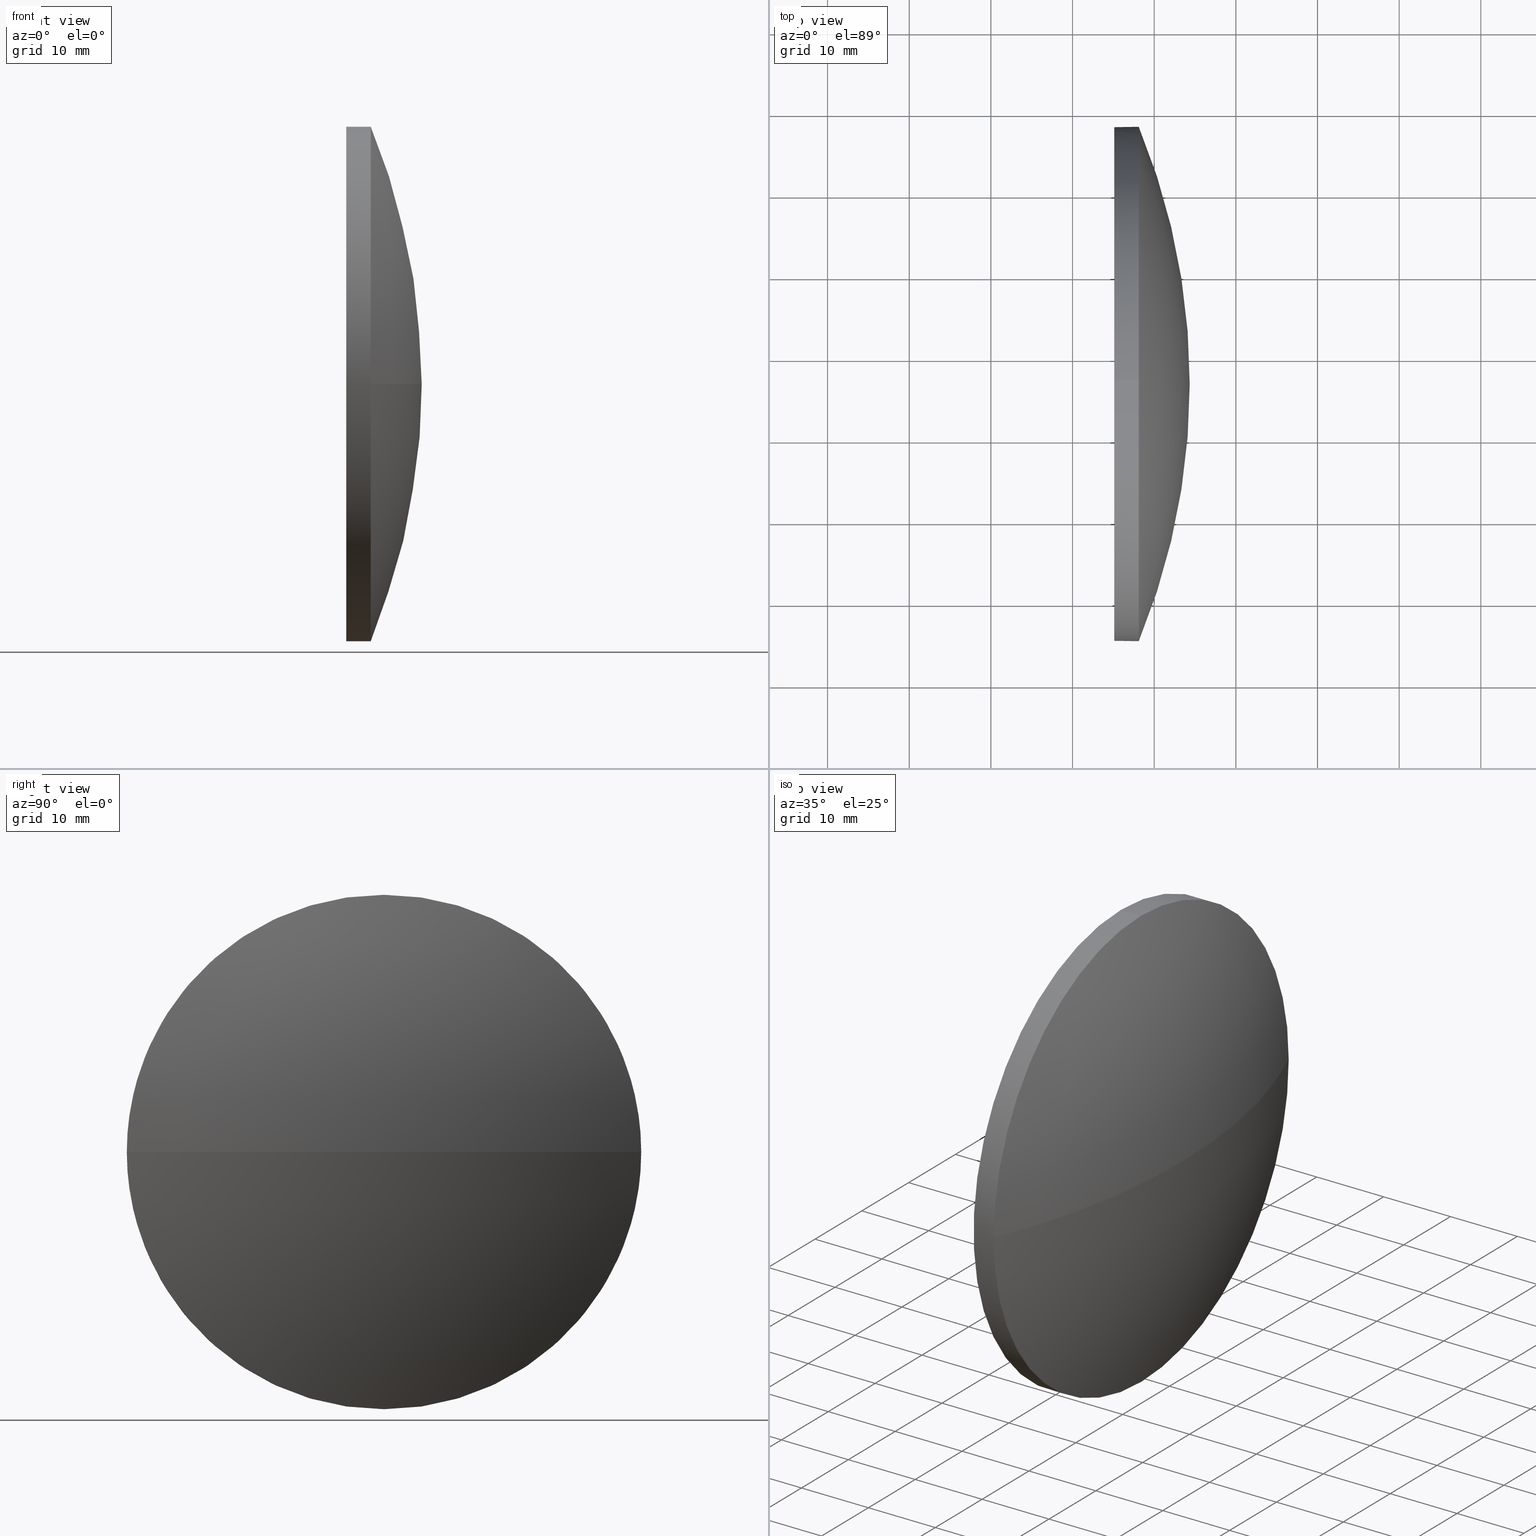
[diagram: canonical four-view strip — front | top / right | iso, engineering-drawing reading convention]
A machine part, canonical four-view strip (front | top / right | iso — engineering-drawing reading convention). The complete STEP part file that produces these views, byte-faithful:
ISO-10303-21;
HEADER;
FILE_DESCRIPTION (( 'STEP AP214' ),
    '1' );
FILE_NAME ('100074.STEP',
    '2019-05-06T03:59:21',
    ( '' ),
    ( '' ),
    'SwSTEP 2.0',
    'SolidWorks 2016',
    '' );
FILE_SCHEMA (( 'AUTOMOTIVE_DESIGN' ));
ENDSEC;

DATA;
#1 = ADVANCED_FACE ( 'NONE', ( #64 ), #46, .T. ) ;
#2 = CARTESIAN_POINT ( 'NONE',  ( 386.0720623555101800, 96.66232867724565400, -31.50000000000001400 ) ) ;
#3 = MECHANICAL_DESIGN_GEOMETRIC_PRESENTATION_REPRESENTATION (  '', ( #147 ), #183 ) ;
#4 = CIRCLE ( 'NONE', #106, 31.50000000000001400 ) ;
#5 = SURFACE_STYLE_FILL_AREA ( #116 ) ;
#6 = PRODUCT_DEFINITION_FORMATION_WITH_SPECIFIED_SOURCE ( '�κ�', '', #88, .NOT_KNOWN. ) ;
#7 = DIRECTION ( 'NONE',  ( -1.000000000000000000, -0.0000000000000000000, -0.0000000000000000000 ) ) ;
#8 = DIRECTION ( 'NONE',  ( -1.000000000000000000, -0.0000000000000000000, -0.0000000000000000000 ) ) ;
#9 = PRODUCT_RELATED_PRODUCT_CATEGORY ( 'part', '', ( #88 ) ) ;
#10 = DIRECTION ( 'NONE',  ( 0.0000000000000000000, 0.0000000000000000000, 1.000000000000000000 ) ) ;
#11 = ORIENTED_EDGE ( 'NONE', *, *, #49, .F. ) ;
#12 = ORIENTED_EDGE ( 'NONE', *, *, #132, .T. ) ;
#13 = SURFACE_STYLE_USAGE ( .BOTH. , #73 ) ;
#14 =( NAMED_UNIT ( * ) PLANE_ANGLE_UNIT ( ) SI_UNIT ( $, .RADIAN. ) );
#15 = AXIS2_PLACEMENT_3D ( 'NONE', #164, #69, #143 ) ;
#16 = MECHANICAL_DESIGN_GEOMETRIC_PRESENTATION_REPRESENTATION (  '', ( #56 ), #48 ) ;
#17 = CARTESIAN_POINT ( 'NONE',  ( 405.1110174173326200, 96.66232867724565400, 31.50000000000001400 ) ) ;
#18 = DIRECTION ( 'NONE',  ( 0.0000000000000000000, 0.0000000000000000000, 1.000000000000000000 ) ) ;
#19 = FACE_OUTER_BOUND ( 'NONE', #105, .T. ) ;
#20 = ADVANCED_BREP_SHAPE_REPRESENTATION ( '100074', ( #110, #67 ), #125 ) ;
#21 = DIRECTION ( 'NONE',  ( 0.0000000000000000000, 0.0000000000000000000, 1.000000000000000000 ) ) ;
#22 = CARTESIAN_POINT ( 'NONE',  ( 405.1110174173326200, 96.66232867724565400, 0.0000000000000000000 ) ) ;
#23 = DIRECTION ( 'NONE',  ( 0.0000000000000000000, 0.0000000000000000000, -1.000000000000000000 ) ) ;
#24 = DIRECTION ( 'NONE',  ( -1.000000000000000000, -0.0000000000000000000, -0.0000000000000000000 ) ) ;
#25 = AXIS2_PLACEMENT_3D ( 'NONE', #36, #24, #10 ) ;
#26 =( NAMED_UNIT ( * ) SI_UNIT ( $, .STERADIAN. ) SOLID_ANGLE_UNIT ( ) );
#27 = APPLICATION_PROTOCOL_DEFINITION ( 'draft international standard', 'automotive_design', 1998, #120 ) ;
#28 =( NAMED_UNIT ( * ) SI_UNIT ( $, .STERADIAN. ) SOLID_ANGLE_UNIT ( ) );
#29 = EDGE_CURVE ( 'NONE', #60, #70, #86, .T. ) ;
#30 = EDGE_LOOP ( 'NONE', ( #33, #126, #135, #94, #144 ) ) ;
#31 = AXIS2_PLACEMENT_3D ( 'NONE', #140, #98, #83 ) ;
#32 = ADVANCED_FACE ( 'NONE', ( #44 ), #130, .T. ) ;
#33 = ORIENTED_EDGE ( 'NONE', *, *, #45, .T. ) ;
#34 = VECTOR ( 'NONE', #165, 1000.000000000000000 ) ;
#35 = PRODUCT_DEFINITION_CONTEXT ( 'detailed design', #120, 'design' ) ;
#36 = CARTESIAN_POINT ( 'NONE',  ( 408.1110174173326200, 96.66232867724565400, 0.0000000000000000000 ) ) ;
#37 = DIRECTION ( 'NONE',  ( 1.000000000000000000, 0.0000000000000000000, 0.0000000000000000000 ) ) ;
#38 = CARTESIAN_POINT ( 'NONE',  ( 414.3510174173326800, 96.66232867724556900, 0.0000000000000000000 ) ) ;
#39 = APPLICATION_CONTEXT ( 'automotive_design' ) ;
#40 = ORIENTED_EDGE ( 'NONE', *, *, #112, .T. ) ;
#41 = PRODUCT_CONTEXT ( 'NONE', #39, 'mechanical' ) ;
#42 = UNCERTAINTY_MEASURE_WITH_UNIT (LENGTH_MEASURE( 1.000000000000000100E-005 ), #89, 'distance_accuracy_value', 'NONE');
#43 = DIRECTION ( 'NONE',  ( 0.0000000000000000000, 0.0000000000000000000, 1.000000000000000000 ) ) ;
#44 = FACE_OUTER_BOUND ( 'NONE', #157, .T. ) ;
#45 = EDGE_CURVE ( 'NONE', #87, #60, #95, .T. ) ;
#46 = CYLINDRICAL_SURFACE ( 'NONE', #85, 31.50000000000001400 ) ;
#47 = VERTEX_POINT ( 'NONE', #63 ) ;
#48 =( GEOMETRIC_REPRESENTATION_CONTEXT ( 3 ) GLOBAL_UNCERTAINTY_ASSIGNED_CONTEXT ( ( #181 ) ) GLOBAL_UNIT_ASSIGNED_CONTEXT ( ( #186, #72, #28 ) ) REPRESENTATION_CONTEXT ( 'NONE', 'WORKASPACE' ) );
#49 = EDGE_CURVE ( 'NONE', #109, #47, #61, .T. ) ;
#50 = UNCERTAINTY_MEASURE_WITH_UNIT (LENGTH_MEASURE( 1.000000000000000100E-005 ), #153, 'distance_accuracy_value', 'NONE');
#51 = VERTEX_POINT ( 'NONE', #17 ) ;
#52 = ORIENTED_EDGE ( 'NONE', *, *, #132, .F. ) ;
#53 = DIRECTION ( 'NONE',  ( 0.0000000000000000000, 1.224646799147353200E-016, -1.000000000000000000 ) ) ;
#54 = CARTESIAN_POINT ( 'NONE',  ( 331.7238058788712500, 96.66232867724556900, 0.0000000000000000000 ) ) ;
#55 = CARTESIAN_POINT ( 'NONE',  ( 408.1110174173326200, 96.66232867724565400, 0.0000000000000000000 ) ) ;
#56 = STYLED_ITEM ( 'NONE', ( #142 ), #20 ) ;
#57 = CARTESIAN_POINT ( 'NONE',  ( 405.1110174173326200, 96.66232867724565400, 0.0000000000000000000 ) ) ;
#58 =( NAMED_UNIT ( * ) PLANE_ANGLE_UNIT ( ) SI_UNIT ( $, .RADIAN. ) );
#59 = CIRCLE ( 'NONE', #100, 31.50000000000001400 ) ;
#60 = VERTEX_POINT ( 'NONE', #77 ) ;
#61 = CIRCLE ( 'NONE', #155, 82.62721153846143800 ) ;
#62 = ADVANCED_FACE ( 'NONE', ( #19 ), #170, .F. ) ;
#63 = CARTESIAN_POINT ( 'NONE',  ( 408.1110174173326200, 65.16232867724556900, -3.857637417314161900E-015 ) ) ;
#64 = FACE_OUTER_BOUND ( 'NONE', #30, .T. ) ;
#65 = CARTESIAN_POINT ( 'NONE',  ( 331.7238058788712500, 96.66232867724556900, 0.0000000000000000000 ) ) ;
#66 = CARTESIAN_POINT ( 'NONE',  ( 386.0720623555101800, 96.66232867724565400, 0.0000000000000000000 ) ) ;
#67 = AXIS2_PLACEMENT_3D ( 'NONE', #152, #84, #133 ) ;
#68 = SURFACE_SIDE_STYLE ('',( #5 ) ) ;
#69 = DIRECTION ( 'NONE',  ( -0.0000000000000000000, 0.0000000000000000000, 1.000000000000000000 ) ) ;
#70 = VERTEX_POINT ( 'NONE', #151 ) ;
#71 =( NAMED_UNIT ( * ) SI_UNIT ( $, .STERADIAN. ) SOLID_ANGLE_UNIT ( ) );
#72 =( NAMED_UNIT ( * ) PLANE_ANGLE_UNIT ( ) SI_UNIT ( $, .RADIAN. ) );
#73 = SURFACE_SIDE_STYLE ('',( #107 ) ) ;
#74 = EDGE_LOOP ( 'NONE', ( #169, #101, #12, #166, #80 ) ) ;
#75 = CLOSED_SHELL ( 'NONE', ( #1, #137, #32, #171, #62 ) ) ;
#76 = SPHERICAL_SURFACE ( 'NONE', #31, 82.62721153846143800 ) ;
#77 = CARTESIAN_POINT ( 'NONE',  ( 408.1110174173326200, 96.66232867724565400, -31.50000000000001400 ) ) ;
#78 = AXIS2_PLACEMENT_3D ( 'NONE', #57, #37, #23 ) ;
#79 = LINE ( 'NONE', #177, #34 ) ;
#80 = ORIENTED_EDGE ( 'NONE', *, *, #90, .F. ) ;
#81 = DIRECTION ( 'NONE',  ( 0.0000000000000000000, 0.0000000000000000000, 1.000000000000000000 ) ) ;
#82 = DIRECTION ( 'NONE',  ( 0.0000000000000000000, 0.0000000000000000000, 1.000000000000000000 ) ) ;
#83 = DIRECTION ( 'NONE',  ( 0.0000000000000000000, 1.000000000000000000, 0.0000000000000000000 ) ) ;
#84 = DIRECTION ( 'NONE',  ( 0.0000000000000000000, 0.0000000000000000000, 1.000000000000000000 ) ) ;
#85 = AXIS2_PLACEMENT_3D ( 'NONE', #93, #172, #18 ) ;
#86 = LINE ( 'NONE', #2, #184 ) ;
#87 = VERTEX_POINT ( 'NONE', #141 ) ;
#88 = PRODUCT ( '100074', '100074', '', ( #41 ) ) ;
#89 =( LENGTH_UNIT ( ) NAMED_UNIT ( * ) SI_UNIT ( .MILLI., .METRE. ) );
#90 = EDGE_CURVE ( 'NONE', #70, #51, #59, .T. ) ;
#91 = CIRCLE ( 'NONE', #25, 31.50000000000001400 ) ;
#92 = ORIENTED_EDGE ( 'NONE', *, *, #173, .F. ) ;
#93 = CARTESIAN_POINT ( 'NONE',  ( 386.0720623555101800, 96.66232867724565400, 0.0000000000000000000 ) ) ;
#94 = ORIENTED_EDGE ( 'NONE', *, *, #123, .F. ) ;
#95 = CIRCLE ( 'NONE', #138, 31.50000000000001400 ) ;
#96 = AXIS2_PLACEMENT_3D ( 'NONE', #55, #113, #179 ) ;
#97 = CARTESIAN_POINT ( 'NONE',  ( 405.1110174173326200, 96.66232867724565400, 0.0000000000000000000 ) ) ;
#98 = DIRECTION ( 'NONE',  ( -0.0000000000000000000, 0.0000000000000000000, -1.000000000000000000 ) ) ;
#99 = SURFACE_STYLE_USAGE ( .BOTH. , #68 ) ;
#100 = AXIS2_PLACEMENT_3D ( 'NONE', #22, #176, #82 ) ;
#101 = ORIENTED_EDGE ( 'NONE', *, *, #173, .T. ) ;
#102 = ORIENTED_EDGE ( 'NONE', *, *, #49, .T. ) ;
#103 = CIRCLE ( 'NONE', #118, 31.50000000000001400 ) ;
#104 = APPLICATION_PROTOCOL_DEFINITION ( 'draft international standard', 'automotive_design', 1998, #39 ) ;
#105 = EDGE_LOOP ( 'NONE', ( #185, #161 ) ) ;
#106 = AXIS2_PLACEMENT_3D ( 'NONE', #97, #8, #163 ) ;
#107 = SURFACE_STYLE_FILL_AREA ( #146 ) ;
#108 = DIRECTION ( 'NONE',  ( -0.0000000000000000000, 0.0000000000000000000, -1.000000000000000000 ) ) ;
#109 = VERTEX_POINT ( 'NONE', #38 ) ;
#110 = MANIFOLD_SOLID_BREP ( '��ת1', #75 ) ;
#111 = DIRECTION ( 'NONE',  ( -1.000000000000000000, -0.0000000000000000000, -0.0000000000000000000 ) ) ;
#112 = EDGE_CURVE ( 'NONE', #109, #87, #148, .T. ) ;
#113 = DIRECTION ( 'NONE',  ( -1.000000000000000000, -0.0000000000000000000, -0.0000000000000000000 ) ) ;
#114 = DIRECTION ( 'NONE',  ( 0.0000000000000000000, 1.000000000000000000, 1.224646799147353200E-016 ) ) ;
#115 = ORIENTED_EDGE ( 'NONE', *, *, #145, .F. ) ;
#116 = FILL_AREA_STYLE ('',( #175 ) ) ;
#117 = DIRECTION ( 'NONE',  ( -1.000000000000000000, -0.0000000000000000000, -0.0000000000000000000 ) ) ;
#118 = AXIS2_PLACEMENT_3D ( 'NONE', #182, #129, #43 ) ;
#119 = PRODUCT_DEFINITION ( 'δ֪', '', #6, #35 ) ;
#120 = APPLICATION_CONTEXT ( 'automotive_design' ) ;
#121 = CYLINDRICAL_SURFACE ( 'NONE', #162, 31.50000000000001400 ) ;
#122 = FACE_OUTER_BOUND ( 'NONE', #74, .T. ) ;
#123 = EDGE_CURVE ( 'NONE', #124, #51, #79, .T. ) ;
#124 = VERTEX_POINT ( 'NONE', #128 ) ;
#125 =( GEOMETRIC_REPRESENTATION_CONTEXT ( 3 ) GLOBAL_UNCERTAINTY_ASSIGNED_CONTEXT ( ( #42 ) ) GLOBAL_UNIT_ASSIGNED_CONTEXT ( ( #89, #14, #26 ) ) REPRESENTATION_CONTEXT ( 'NONE', 'WORKASPACE' ) );
#126 = ORIENTED_EDGE ( 'NONE', *, *, #29, .T. ) ;
#127 = FILL_AREA_STYLE_COLOUR ( '', #134 ) ;
#128 = CARTESIAN_POINT ( 'NONE',  ( 408.1110174173326200, 96.66232867724565400, 31.50000000000001400 ) ) ;
#129 = DIRECTION ( 'NONE',  ( -1.000000000000000000, -0.0000000000000000000, -0.0000000000000000000 ) ) ;
#130 = SPHERICAL_SURFACE ( 'NONE', #149, 82.62721153846143800 ) ;
#131 = PRESENTATION_STYLE_ASSIGNMENT (( #99 ) ) ;
#132 = EDGE_CURVE ( 'NONE', #47, #124, #154, .T. ) ;
#133 = DIRECTION ( 'NONE',  ( 1.000000000000000000, 0.0000000000000000000, 0.0000000000000000000 ) ) ;
#134 = COLOUR_RGB ( '',1.000000000000000000, 1.000000000000000000, 1.000000000000000000 ) ;
#135 = ORIENTED_EDGE ( 'NONE', *, *, #156, .F. ) ;
#136 = PRESENTATION_LAYER_ASSIGNMENT (  '', '', ( #147 ) ) ;
#137 = ADVANCED_FACE ( 'NONE', ( #180 ), #76, .T. ) ;
#138 = AXIS2_PLACEMENT_3D ( 'NONE', #174, #111, #21 ) ;
#139 = EDGE_LOOP ( 'NONE', ( #168, #102, #92, #178 ) ) ;
#140 = CARTESIAN_POINT ( 'NONE',  ( 331.7238058788712500, 96.66232867724556900, 0.0000000000000000000 ) ) ;
#141 = CARTESIAN_POINT ( 'NONE',  ( 408.1110174173326200, 128.1623286772456500, 0.0000000000000000000 ) ) ;
#142 = PRESENTATION_STYLE_ASSIGNMENT (( #13 ) ) ;
#143 = DIRECTION ( 'NONE',  ( 1.000000000000000000, 0.0000000000000000000, 0.0000000000000000000 ) ) ;
#144 = ORIENTED_EDGE ( 'NONE', *, *, #145, .T. ) ;
#145 = EDGE_CURVE ( 'NONE', #124, #87, #91, .T. ) ;
#146 = FILL_AREA_STYLE ('',( #127 ) ) ;
#147 = STYLED_ITEM ( 'NONE', ( #131 ), #110 ) ;
#148 = CIRCLE ( 'NONE', #15, 82.62721153846142400 ) ;
#149 = AXIS2_PLACEMENT_3D ( 'NONE', #65, #108, #160 ) ;
#150 = COLOUR_RGB ( '',1.000000000000000000, 1.000000000000000000, 1.000000000000000000 ) ;
#151 = CARTESIAN_POINT ( 'NONE',  ( 405.1110174173326200, 96.66232867724565400, -31.50000000000001400 ) ) ;
#152 = CARTESIAN_POINT ( 'NONE',  ( 0.0000000000000000000, 0.0000000000000000000, 0.0000000000000000000 ) ) ;
#153 =( LENGTH_UNIT ( ) NAMED_UNIT ( * ) SI_UNIT ( .MILLI., .METRE. ) );
#154 = CIRCLE ( 'NONE', #96, 31.50000000000001400 ) ;
#155 = AXIS2_PLACEMENT_3D ( 'NONE', #54, #53, #114 ) ;
#156 = EDGE_CURVE ( 'NONE', #51, #70, #4, .T. ) ;
#157 = EDGE_LOOP ( 'NONE', ( #11, #40, #115, #52 ) ) ;
#158 = PRESENTATION_LAYER_ASSIGNMENT (  '', '', ( #56 ) ) ;
#159 = PRODUCT_DEFINITION_SHAPE ( 'NONE', 'NONE',  #119 ) ;
#160 = DIRECTION ( 'NONE',  ( 0.0000000000000000000, 1.000000000000000000, 0.0000000000000000000 ) ) ;
#161 = ORIENTED_EDGE ( 'NONE', *, *, #90, .T. ) ;
#162 = AXIS2_PLACEMENT_3D ( 'NONE', #66, #117, #81 ) ;
#163 = DIRECTION ( 'NONE',  ( 0.0000000000000000000, 0.0000000000000000000, 1.000000000000000000 ) ) ;
#164 = CARTESIAN_POINT ( 'NONE',  ( 331.7238058788712500, 96.66232867724556900, 0.0000000000000000000 ) ) ;
#165 = DIRECTION ( 'NONE',  ( -1.000000000000000000, -0.0000000000000000000, -0.0000000000000000000 ) ) ;
#166 = ORIENTED_EDGE ( 'NONE', *, *, #123, .T. ) ;
#167 = SHAPE_DEFINITION_REPRESENTATION ( #159, #20 ) ;
#168 = ORIENTED_EDGE ( 'NONE', *, *, #112, .F. ) ;
#169 = ORIENTED_EDGE ( 'NONE', *, *, #29, .F. ) ;
#170 = PLANE ( 'NONE',  #78 ) ;
#171 = ADVANCED_FACE ( 'NONE', ( #122 ), #121, .T. ) ;
#172 = DIRECTION ( 'NONE',  ( -1.000000000000000000, -0.0000000000000000000, -0.0000000000000000000 ) ) ;
#173 = EDGE_CURVE ( 'NONE', #60, #47, #103, .T. ) ;
#174 = CARTESIAN_POINT ( 'NONE',  ( 408.1110174173326200, 96.66232867724565400, 0.0000000000000000000 ) ) ;
#175 = FILL_AREA_STYLE_COLOUR ( '', #150 ) ;
#176 = DIRECTION ( 'NONE',  ( -1.000000000000000000, -0.0000000000000000000, -0.0000000000000000000 ) ) ;
#177 = CARTESIAN_POINT ( 'NONE',  ( 386.0720623555101800, 96.66232867724565400, 31.50000000000001400 ) ) ;
#178 = ORIENTED_EDGE ( 'NONE', *, *, #45, .F. ) ;
#179 = DIRECTION ( 'NONE',  ( 0.0000000000000000000, 0.0000000000000000000, 1.000000000000000000 ) ) ;
#180 = FACE_OUTER_BOUND ( 'NONE', #139, .T. ) ;
#181 = UNCERTAINTY_MEASURE_WITH_UNIT (LENGTH_MEASURE( 1.000000000000000100E-005 ), #186, 'distance_accuracy_value', 'NONE');
#182 = CARTESIAN_POINT ( 'NONE',  ( 408.1110174173326200, 96.66232867724565400, 0.0000000000000000000 ) ) ;
#183 =( GEOMETRIC_REPRESENTATION_CONTEXT ( 3 ) GLOBAL_UNCERTAINTY_ASSIGNED_CONTEXT ( ( #50 ) ) GLOBAL_UNIT_ASSIGNED_CONTEXT ( ( #153, #58, #71 ) ) REPRESENTATION_CONTEXT ( 'NONE', 'WORKASPACE' ) );
#184 = VECTOR ( 'NONE', #7, 1000.000000000000000 ) ;
#185 = ORIENTED_EDGE ( 'NONE', *, *, #156, .T. ) ;
#186 =( LENGTH_UNIT ( ) NAMED_UNIT ( * ) SI_UNIT ( .MILLI., .METRE. ) );
ENDSEC;
END-ISO-10303-21;
